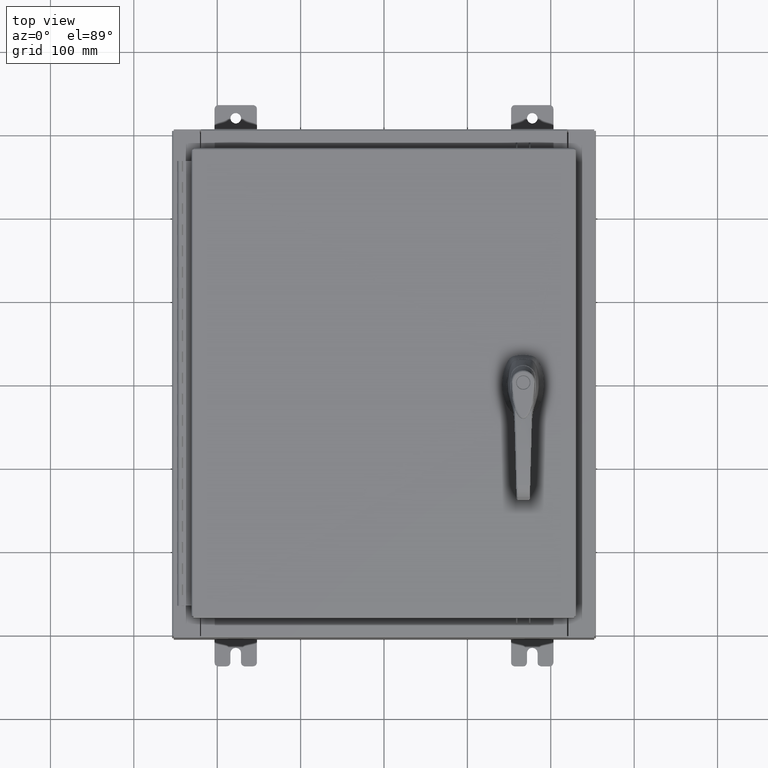
[diagram: clean part render]
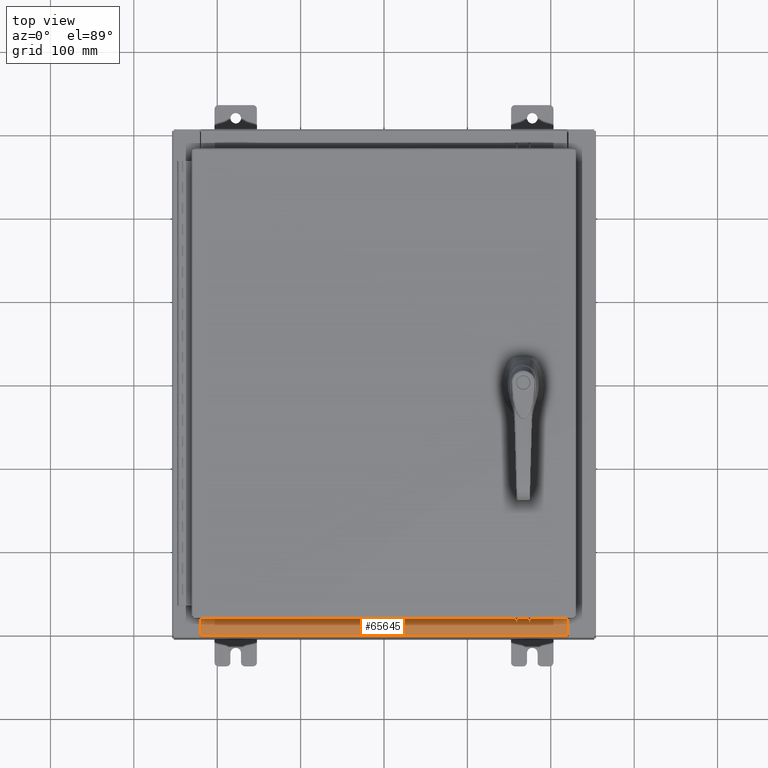
[diagram: same view with one face highlighted and labeled with its STEP entity id]
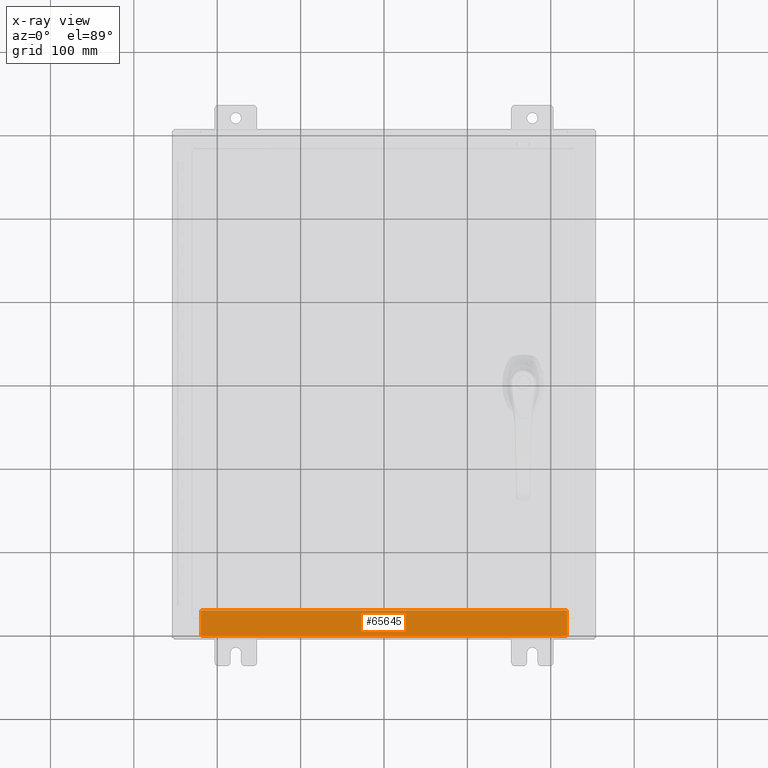
[diagram: x-ray of the same camera — body ghosted, the highlighted face saturated]
A machine part, top view. The second image highlights one B-rep face of the part: STEP entity #65645.
The next image is the same camera in x-ray: the body ghosted, the highlighted face saturated — about 0% of this face is hidden behind the body in this view.
In plain terms, the highlighted planar face has unit normal (-0, -0, 1).
Its self-contained STEP definition (entity closure, byte-faithful):
#647 = VERTEX_POINT ( 'NONE', #26473 ) ;
#2834 = VERTEX_POINT ( 'NONE', #54094 ) ;
#3899 = CARTESIAN_POINT ( 'NONE',  ( -2.773851121247453900E-018, -0.08770000000000000000, 3.000000000000001300 ) ) ;
#4068 = ORIENTED_EDGE ( 'NONE', *, *, #106309, .F. ) ;
#6350 = PLANE ( 'NONE',  #44558 ) ;
#12685 = DIRECTION ( 'NONE',  ( -1.000000000000000000, 3.162886113166609200E-017, -1.128005754888089100E-031 ) ) ;
#15136 = CARTESIAN_POINT ( 'NONE',  ( 0.0000000000000000000, 1.069354855923099900E-014, 3.000000000000000900 ) ) ;
#16056 = CARTESIAN_POINT ( 'NONE',  ( 8.637200000000000000, -1.300299999999999800, 3.000000000000005300 ) ) ;
#17055 = EDGE_LOOP ( 'NONE', ( #44484, #67824, #4068, #95836 ) ) ;
#17181 = CARTESIAN_POINT ( 'NONE',  ( 8.637200000000000000, -1.287299999999999900, 3.000000000000005300 ) ) ;
#24858 = DIRECTION ( 'NONE',  ( -0.0000000000000000000, -1.000000000000000000, 3.566381192773190000E-015 ) ) ;
#26473 = CARTESIAN_POINT ( 'NONE',  ( -8.637200000000000000, -0.08770000000000000000, 3.000000000000000900 ) ) ;
#27814 = LINE ( 'NONE', #3899, #71730 ) ;
#32789 = DIRECTION ( 'NONE',  ( 0.0000000000000000000, -1.000000000000000000, 3.566381192773190000E-015 ) ) ;
#33255 = VECTOR ( 'NONE', #34411, 39.37007874015748100 ) ;
#34411 = DIRECTION ( 'NONE',  ( -1.000000000000000000, 0.0000000000000000000, 0.0000000000000000000 ) ) ;
#38421 = EDGE_CURVE ( 'NONE', #77971, #95313, #41510, .T. ) ;
#41510 = LINE ( 'NONE', #94663, #33255 ) ;
#44484 = ORIENTED_EDGE ( 'NONE', *, *, #79267, .F. ) ;
#44558 = AXIS2_PLACEMENT_3D ( 'NONE', #15136, #85330, #32789 ) ;
#54094 = CARTESIAN_POINT ( 'NONE',  ( 8.637200000000000000, -0.08769999999999965300, 3.000000000000000900 ) ) ;
#55887 = VECTOR ( 'NONE', #24858, 39.37007874015748100 ) ;
#58683 = FACE_OUTER_BOUND ( 'NONE', #17055, .T. ) ;
#59394 = LINE ( 'NONE', #65070, #108806 ) ;
#65070 = CARTESIAN_POINT ( 'NONE',  ( -8.637200000000000000, -0.07469999999999973900, 3.000000000000000900 ) ) ;
#65645 = ADVANCED_FACE ( 'NONE', ( #58683 ), #6350, .T. ) ;
#67824 = ORIENTED_EDGE ( 'NONE', *, *, #38421, .F. ) ;
#71730 = VECTOR ( 'NONE', #12685, 39.37007874015748100 ) ;
#77971 = VERTEX_POINT ( 'NONE', #17181 ) ;
#79267 = EDGE_CURVE ( 'NONE', #95313, #647, #59394, .T. ) ;
#82751 = DIRECTION ( 'NONE',  ( -0.0000000000000000000, 1.000000000000000000, -3.566381192773190000E-015 ) ) ;
#85330 = DIRECTION ( 'NONE',  ( 0.0000000000000000000, 3.566381192773190000E-015, 1.000000000000000000 ) ) ;
#93717 = CARTESIAN_POINT ( 'NONE',  ( -8.637200000000000000, -1.287299999999999200, 3.000000000000005300 ) ) ;
#94663 = CARTESIAN_POINT ( 'NONE',  ( 8.637200000000000000, -1.287299999999999900, 3.000000000000005300 ) ) ;
#95313 = VERTEX_POINT ( 'NONE', #93717 ) ;
#95836 = ORIENTED_EDGE ( 'NONE', *, *, #100062, .T. ) ;
#100062 = EDGE_CURVE ( 'NONE', #2834, #647, #27814, .T. ) ;
#102590 = LINE ( 'NONE', #16056, #55887 ) ;
#106309 = EDGE_CURVE ( 'NONE', #2834, #77971, #102590, .T. ) ;
#108806 = VECTOR ( 'NONE', #82751, 39.37007874015748100 ) ;